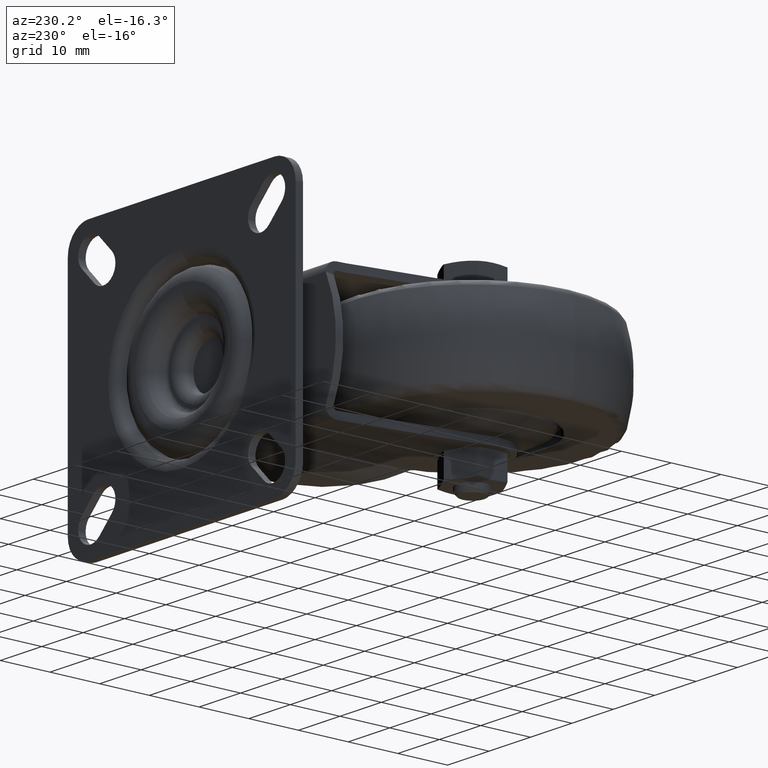
[diagram: clean part render]
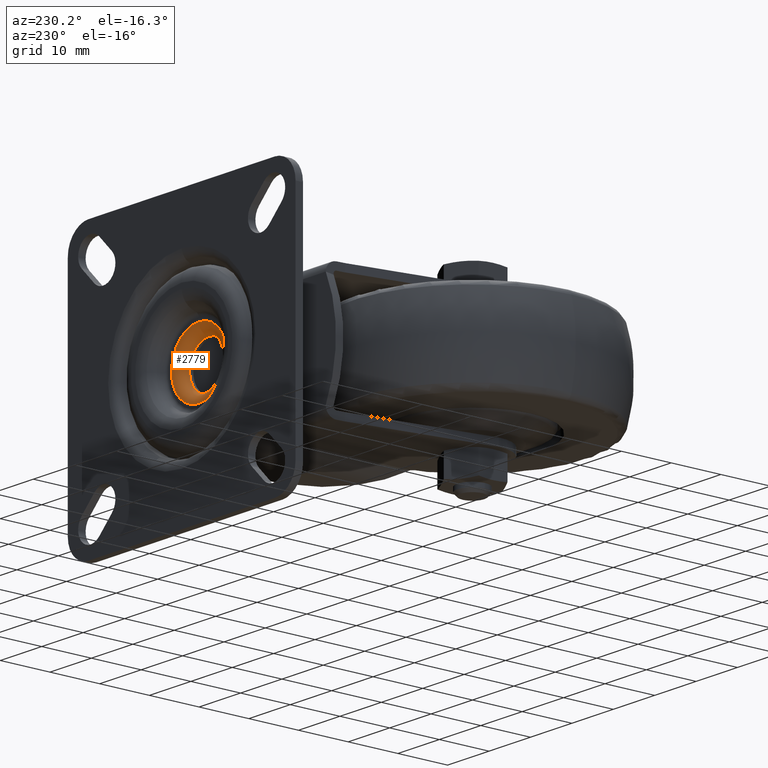
[diagram: same view with one face highlighted and labeled with its STEP entity id]
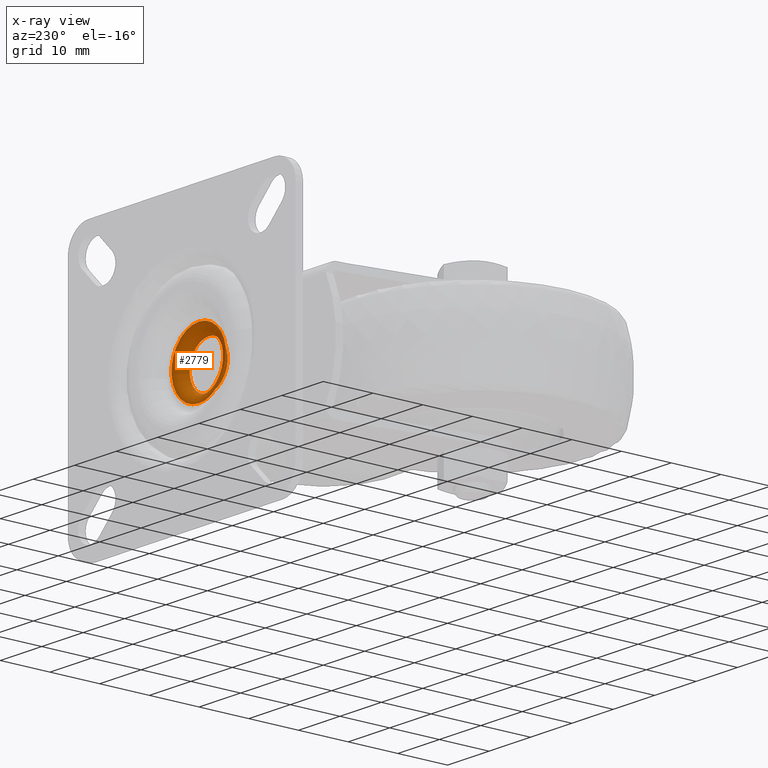
[diagram: x-ray of the same camera — body ghosted, the highlighted face saturated]
A machine part, auxiliary view. The second image highlights one B-rep face of the part: STEP entity #2779.
The next image is the same camera in x-ray: the body ghosted, the highlighted face saturated — about 0% of this face is hidden behind the body in this view.
In plain terms, the highlighted toroidal blend (fillet) surface has major radius 6.6 mm and minor (blend) radius 2 mm.
Its self-contained STEP definition (entity closure, byte-faithful):
#118=TOROIDAL_SURFACE('',#3280,6.6,2.);
#642=FACE_OUTER_BOUND('',#845,.T.);
#845=EDGE_LOOP('',(#2289,#2290,#2291,#2292));
#1049=CIRCLE('',#3279,4.6);
#1050=CIRCLE('',#3281,6.6);
#1051=CIRCLE('',#3282,2.);
#1355=VERTEX_POINT('',#5156);
#1356=VERTEX_POINT('',#5160);
#1688=EDGE_CURVE('',#1355,#1355,#1049,.T.);
#1690=EDGE_CURVE('',#1356,#1356,#1050,.T.);
#1691=EDGE_CURVE('',#1356,#1355,#1051,.T.);
#2289=ORIENTED_EDGE('',*,*,#1690,.F.);
#2290=ORIENTED_EDGE('',*,*,#1691,.T.);
#2291=ORIENTED_EDGE('',*,*,#1688,.T.);
#2292=ORIENTED_EDGE('',*,*,#1691,.F.);
#2779=ADVANCED_FACE('',(#642),#118,.T.);
#3279=AXIS2_PLACEMENT_3D('',#5157,#3991,#3992);
#3280=AXIS2_PLACEMENT_3D('',#5159,#3994,#3995);
#3281=AXIS2_PLACEMENT_3D('',#5161,#3996,#3997);
#3282=AXIS2_PLACEMENT_3D('',#5162,#3998,#3999);
#3991=DIRECTION('center_axis',(0.,-1.,0.));
#3992=DIRECTION('ref_axis',(0.,0.,-1.));
#3994=DIRECTION('center_axis',(0.,-1.,0.));
#3995=DIRECTION('ref_axis',(0.,0.,-1.));
#3996=DIRECTION('center_axis',(0.,-1.,0.));
#3997=DIRECTION('ref_axis',(0.,0.,-1.));
#3998=DIRECTION('center_axis',(-1.,0.,0.));
#3999=DIRECTION('ref_axis',(0.,0.,1.));
#5156=CARTESIAN_POINT('',(21.,35.56,4.6));
#5157=CARTESIAN_POINT('Origin',(21.,35.56,0.));
#5159=CARTESIAN_POINT('Origin',(21.,35.56,0.));
#5160=CARTESIAN_POINT('',(21.,37.56,6.6));
#5161=CARTESIAN_POINT('Origin',(21.,37.56,0.));
#5162=CARTESIAN_POINT('Origin',(21.,35.56,6.6));